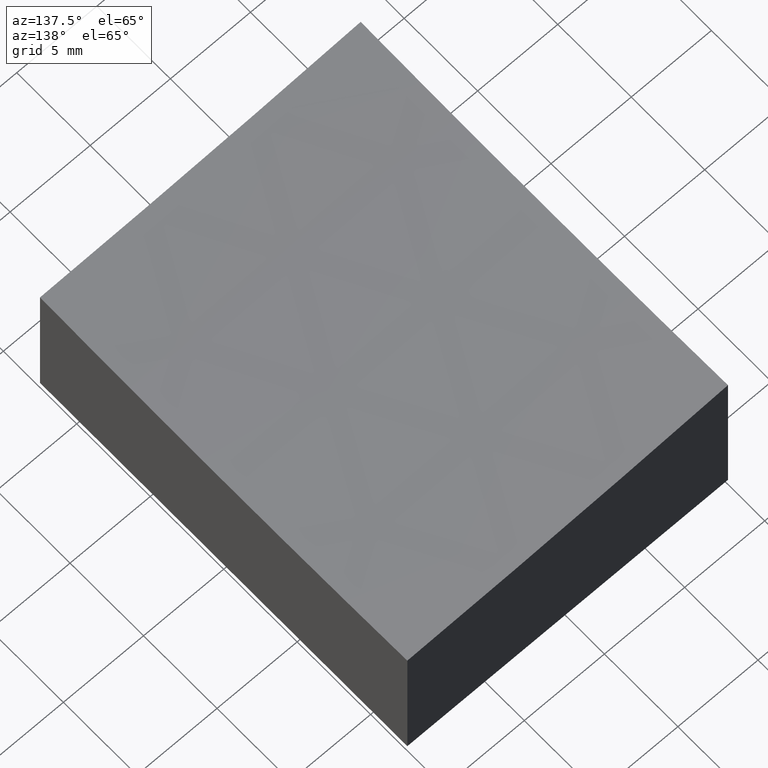
[diagram: clean part render]
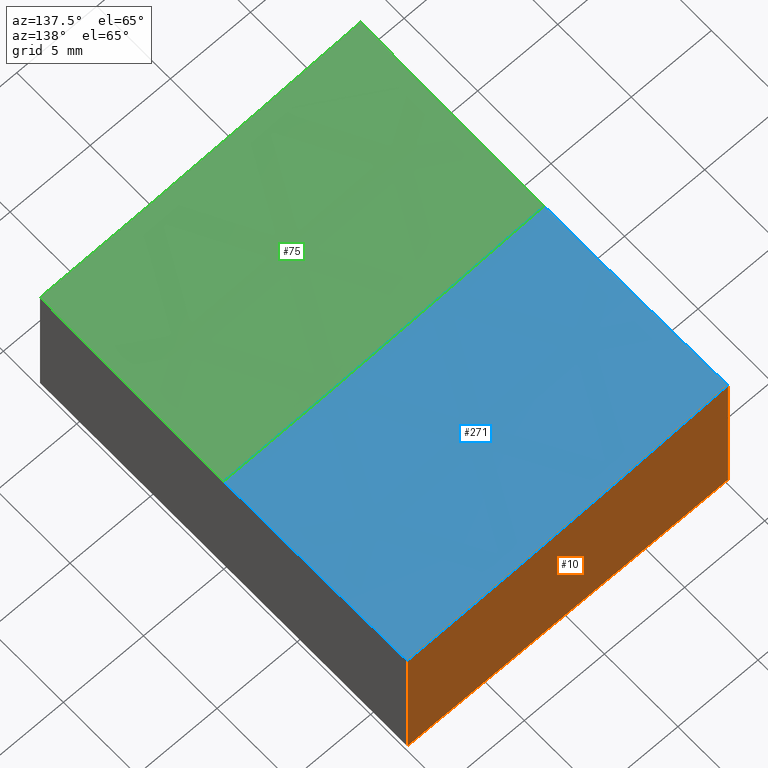
[diagram: same view with three faces highlighted in distinct colors, each labeled with its STEP entity id]
A machine part, auxiliary view with three faces highlighted in distinct colors.
Their STEP definitions:

[orange] entity #10 — the highlighted planar face has unit normal (0, -1, 0).
#1 = ORIENTED_EDGE ( 'NONE', *, *, #180, .F. ) ;
#4 = DIRECTION ( 'NONE',  ( -1.000000000000000000, -1.734723475976807094E-16, 0.000000000000000000 ) ) ;
#6 = LINE ( 'NONE', #240, #251 ) ;
#8 = DIRECTION ( 'NONE',  ( -0.000000000000000000, -0.000000000000000000, -1.000000000000000000 ) ) ;
#10 = ADVANCED_FACE ( 'NONE', ( #154 ), #274, .F. ) ;
#25 = VERTEX_POINT ( 'NONE', #73 ) ;
#39 = EDGE_CURVE ( 'NONE', #218, #217, #222, .T. ) ;
#45 = DIRECTION ( 'NONE',  ( 1.000000000000000000, 1.734723475976807094E-16, 0.000000000000000000 ) ) ;
#47 = VERTEX_POINT ( 'NONE', #167 ) ;
#48 = DIRECTION ( 'NONE',  ( 1.000000000000000000, 1.736231275892908730E-16, 0.000000000000000000 ) ) ;
#67 = ORIENTED_EDGE ( 'NONE', *, *, #135, .T. ) ;
#72 = DIRECTION ( 'NONE',  ( -0.000000000000000000, -0.000000000000000000, -1.000000000000000000 ) ) ;
#73 = CARTESIAN_POINT ( 'NONE',  ( -9.999999999999998224, 12.49999999999999645, 0.3049213662870142727 ) ) ;
#76 = DIRECTION ( 'NONE',  ( 1.734723475976807094E-16, -1.000000000000000000, 0.000000000000000000 ) ) ;
#90 = DIRECTION ( 'NONE',  ( 1.734723475976807094E-16, -1.000000000000000000, 0.000000000000000000 ) ) ;
#96 = CARTESIAN_POINT ( 'NONE',  ( 10.00000000000000178, 12.50000000000000000, 10.00000000000000000 ) ) ;
#97 = VECTOR ( 'NONE', #8, 1000.000000000000000 ) ;
#106 = CARTESIAN_POINT ( 'NONE',  ( 10.00000000000000178, 12.50000000000000000, -0.6977644227597612492 ) ) ;
#112 = EDGE_LOOP ( 'NONE', ( #1, #67, #215, #177 ) ) ;
#135 = EDGE_CURVE ( 'NONE', #25, #218, #233, .T. ) ;
#138 = EDGE_CURVE ( 'NONE', #217, #47, #226, .T. ) ;
#151 = VECTOR ( 'NONE', #4, 1000.000000000000000 ) ;
#154 = FACE_OUTER_BOUND ( 'NONE', #112, .T. ) ;
#166 = CARTESIAN_POINT ( 'NONE',  ( 15.00000000000003730, 12.50000000000000178, 299.0000000000000000 ) ) ;
#167 = CARTESIAN_POINT ( 'NONE',  ( -9.999999999999998224, 12.49999999999999645, -10.00000000000000000 ) ) ;
#169 = AXIS2_PLACEMENT_3D ( 'NONE', #235, #90, #45 ) ;
#177 = ORIENTED_EDGE ( 'NONE', *, *, #138, .T. ) ;
#178 = CARTESIAN_POINT ( 'NONE',  ( 10.00000000000000178, 12.50000000000000000, -10.00000000000000000 ) ) ;
#180 = EDGE_CURVE ( 'NONE', #25, #47, #6, .T. ) ;
#215 = ORIENTED_EDGE ( 'NONE', *, *, #39, .T. ) ;
#217 = VERTEX_POINT ( 'NONE', #268 ) ;
#218 = VERTEX_POINT ( 'NONE', #106 ) ;
#222 = LINE ( 'NONE', #96, #97 ) ;
#226 = LINE ( 'NONE', #178, #151 ) ;
#233 = CIRCLE ( 'NONE', #264, 299.7394702070449171 ) ;
#235 = CARTESIAN_POINT ( 'NONE',  ( 10.00000000000000178, 12.50000000000000000, 10.00000000000000000 ) ) ;
#240 = CARTESIAN_POINT ( 'NONE',  ( -9.999999999999998224, 12.49999999999999645, 10.00000000000000000 ) ) ;
#251 = VECTOR ( 'NONE', #72, 1000.000000000000000 ) ;
#264 = AXIS2_PLACEMENT_3D ( 'NONE', #166, #76, #48 ) ;
#268 = CARTESIAN_POINT ( 'NONE',  ( 10.00000000000000178, 12.50000000000000000, -10.00000000000000000 ) ) ;
#274 = PLANE ( 'NONE',  #169 ) ;

[blue] entity #271 — the highlighted spherical surface has radius 300 mm.
#3 = AXIS2_PLACEMENT_3D ( 'NONE', #55, #5, #74 ) ;
#5 = DIRECTION ( 'NONE',  ( 0.000000000000000000, 1.000000000000000000, -0.000000000000000000 ) ) ;
#25 = VERTEX_POINT ( 'NONE', #73 ) ;
#32 = EDGE_CURVE ( 'NONE', #190, #220, #227, .T. ) ;
#48 = DIRECTION ( 'NONE',  ( 1.000000000000000000, 1.736231275892908730E-16, 0.000000000000000000 ) ) ;
#55 = CARTESIAN_POINT ( 'NONE',  ( 15.00000000000003908, 0.000000000000000000, 299.0000000000000000 ) ) ;
#56 = CARTESIAN_POINT ( 'NONE',  ( -9.999999999999996447, 0.000000000000000000, 0.04348142246501929264 ) ) ;
#58 = CARTESIAN_POINT ( 'NONE',  ( -9.999999999999996447, 0.000000000000000000, 299.0000000000000000 ) ) ;
#73 = CARTESIAN_POINT ( 'NONE',  ( -9.999999999999998224, 12.49999999999999645, 0.3049213662870142727 ) ) ;
#74 = DIRECTION ( 'NONE',  ( -1.000000000000000000, 0.000000000000000000, 0.000000000000000000 ) ) ;
#76 = DIRECTION ( 'NONE',  ( 1.734723475976807094E-16, -1.000000000000000000, 0.000000000000000000 ) ) ;
#78 = AXIS2_PLACEMENT_3D ( 'NONE', #58, #181, #119 ) ;
#81 = CARTESIAN_POINT ( 'NONE',  ( 15.00000000000003908, 0.000000000000000000, 299.0000000000000000 ) ) ;
#84 = CIRCLE ( 'NONE', #78, 298.9565185775349505 ) ;
#86 = EDGE_CURVE ( 'NONE', #190, #25, #84, .T. ) ;
#95 = ORIENTED_EDGE ( 'NONE', *, *, #275, .F. ) ;
#102 = FACE_OUTER_BOUND ( 'NONE', #197, .T. ) ;
#105 = CARTESIAN_POINT ( 'NONE',  ( 10.00000000000000178, 0.000000000000000000, 299.0000000000000000 ) ) ;
#106 = CARTESIAN_POINT ( 'NONE',  ( 10.00000000000000178, 12.50000000000000000, -0.6977644227597612492 ) ) ;
#113 = ORIENTED_EDGE ( 'NONE', *, *, #86, .F. ) ;
#119 = DIRECTION ( 'NONE',  ( 0.000000000000000000, 0.000000000000000000, -1.000000000000000000 ) ) ;
#135 = EDGE_CURVE ( 'NONE', #25, #218, #233, .T. ) ;
#140 = DIRECTION ( 'NONE',  ( 0.000000000000000000, -1.000000000000000000, 0.000000000000000000 ) ) ;
#147 = AXIS2_PLACEMENT_3D ( 'NONE', #105, #184, #203 ) ;
#152 = ORIENTED_EDGE ( 'NONE', *, *, #135, .F. ) ;
#166 = CARTESIAN_POINT ( 'NONE',  ( 15.00000000000003730, 12.50000000000000178, 299.0000000000000000 ) ) ;
#181 = DIRECTION ( 'NONE',  ( 1.000000000000000000, 0.000000000000000000, 0.000000000000000000 ) ) ;
#183 = CARTESIAN_POINT ( 'NONE',  ( 10.00000000000000178, 0.000000000000000000, -0.9583304394129021908 ) ) ;
#184 = DIRECTION ( 'NONE',  ( -1.000000000000000000, 0.000000000000000000, 0.000000000000000000 ) ) ;
#190 = VERTEX_POINT ( 'NONE', #56 ) ;
#191 = AXIS2_PLACEMENT_3D ( 'NONE', #81, #140, #221 ) ;
#197 = EDGE_LOOP ( 'NONE', ( #113, #259, #95, #152 ) ) ;
#203 = DIRECTION ( 'NONE',  ( 0.000000000000000000, 0.000000000000000000, 1.000000000000000000 ) ) ;
#218 = VERTEX_POINT ( 'NONE', #106 ) ;
#220 = VERTEX_POINT ( 'NONE', #183 ) ;
#221 = DIRECTION ( 'NONE',  ( 0.000000000000000000, 0.000000000000000000, -1.000000000000000000 ) ) ;
#227 = CIRCLE ( 'NONE', #191, 300.0000000000000000 ) ;
#230 = CIRCLE ( 'NONE', #147, 299.9583304394128618 ) ;
#233 = CIRCLE ( 'NONE', #264, 299.7394702070449171 ) ;
#259 = ORIENTED_EDGE ( 'NONE', *, *, #32, .T. ) ;
#262 = SPHERICAL_SURFACE ( 'NONE', #3, 300.0000000000000000 ) ;
#264 = AXIS2_PLACEMENT_3D ( 'NONE', #166, #76, #48 ) ;
#271 = ADVANCED_FACE ( 'NONE', ( #102 ), #262, .F. ) ;
#275 = EDGE_CURVE ( 'NONE', #218, #220, #230, .T. ) ;

[green] entity #75 — the highlighted spherical surface has radius 300 mm.
#2 = FACE_OUTER_BOUND ( 'NONE', #234, .T. ) ;
#20 = ORIENTED_EDGE ( 'NONE', *, *, #21, .F. ) ;
#21 = EDGE_CURVE ( 'NONE', #220, #133, #186, .T. ) ;
#26 = VERTEX_POINT ( 'NONE', #79 ) ;
#32 = EDGE_CURVE ( 'NONE', #190, #220, #227, .T. ) ;
#50 = CARTESIAN_POINT ( 'NONE',  ( -9.999999999999996447, 0.000000000000000000, 299.0000000000000000 ) ) ;
#53 = CIRCLE ( 'NONE', #210, 299.7394702070449171 ) ;
#56 = CARTESIAN_POINT ( 'NONE',  ( -9.999999999999996447, 0.000000000000000000, 0.04348142246501929264 ) ) ;
#68 = AXIS2_PLACEMENT_3D ( 'NONE', #202, #104, #179 ) ;
#75 = ADVANCED_FACE ( 'NONE', ( #2 ), #242, .F. ) ;
#79 = CARTESIAN_POINT ( 'NONE',  ( -9.999999999999998224, -12.50000000000000355, 0.3049213662870142727 ) ) ;
#81 = CARTESIAN_POINT ( 'NONE',  ( 15.00000000000003908, 0.000000000000000000, 299.0000000000000000 ) ) ;
#104 = DIRECTION ( 'NONE',  ( 0.000000000000000000, 1.000000000000000000, -0.000000000000000000 ) ) ;
#116 = EDGE_CURVE ( 'NONE', #133, #26, #53, .T. ) ;
#133 = VERTEX_POINT ( 'NONE', #159 ) ;
#136 = DIRECTION ( 'NONE',  ( 1.000000000000000000, 0.000000000000000000, 0.000000000000000000 ) ) ;
#137 = CIRCLE ( 'NONE', #248, 298.9565185775349505 ) ;
#140 = DIRECTION ( 'NONE',  ( 0.000000000000000000, -1.000000000000000000, 0.000000000000000000 ) ) ;
#150 = ORIENTED_EDGE ( 'NONE', *, *, #116, .F. ) ;
#155 = DIRECTION ( 'NONE',  ( -1.000000000000000000, 0.000000000000000000, 0.000000000000000000 ) ) ;
#159 = CARTESIAN_POINT ( 'NONE',  ( 10.00000000000000178, -12.50000000000000000, -0.6977644227598167603 ) ) ;
#160 = DIRECTION ( 'NONE',  ( 0.000000000000000000, 0.000000000000000000, -1.000000000000000000 ) ) ;
#162 = AXIS2_PLACEMENT_3D ( 'NONE', #258, #155, #204 ) ;
#174 = ORIENTED_EDGE ( 'NONE', *, *, #193, .F. ) ;
#179 = DIRECTION ( 'NONE',  ( -1.000000000000000000, 0.000000000000000000, 0.000000000000000000 ) ) ;
#183 = CARTESIAN_POINT ( 'NONE',  ( 10.00000000000000178, 0.000000000000000000, -0.9583304394129021908 ) ) ;
#186 = CIRCLE ( 'NONE', #162, 299.9583304394128618 ) ;
#190 = VERTEX_POINT ( 'NONE', #56 ) ;
#191 = AXIS2_PLACEMENT_3D ( 'NONE', #81, #140, #221 ) ;
#193 = EDGE_CURVE ( 'NONE', #26, #190, #137, .T. ) ;
#198 = DIRECTION ( 'NONE',  ( -1.000000000000000000, -1.736231275892908730E-16, 0.000000000000000000 ) ) ;
#202 = CARTESIAN_POINT ( 'NONE',  ( 15.00000000000003908, 0.000000000000000000, 299.0000000000000000 ) ) ;
#204 = DIRECTION ( 'NONE',  ( 0.000000000000000000, 0.000000000000000000, 1.000000000000000000 ) ) ;
#210 = AXIS2_PLACEMENT_3D ( 'NONE', #263, #265, #198 ) ;
#216 = ORIENTED_EDGE ( 'NONE', *, *, #32, .F. ) ;
#220 = VERTEX_POINT ( 'NONE', #183 ) ;
#221 = DIRECTION ( 'NONE',  ( 0.000000000000000000, 0.000000000000000000, -1.000000000000000000 ) ) ;
#227 = CIRCLE ( 'NONE', #191, 300.0000000000000000 ) ;
#234 = EDGE_LOOP ( 'NONE', ( #216, #174, #150, #20 ) ) ;
#242 = SPHERICAL_SURFACE ( 'NONE', #68, 300.0000000000000000 ) ;
#248 = AXIS2_PLACEMENT_3D ( 'NONE', #50, #136, #160 ) ;
#258 = CARTESIAN_POINT ( 'NONE',  ( 10.00000000000000178, 0.000000000000000000, 299.0000000000000000 ) ) ;
#263 = CARTESIAN_POINT ( 'NONE',  ( 15.00000000000004086, -12.49999999999999822, 299.0000000000000000 ) ) ;
#265 = DIRECTION ( 'NONE',  ( -1.734723475976807094E-16, 1.000000000000000000, 0.000000000000000000 ) ) ;